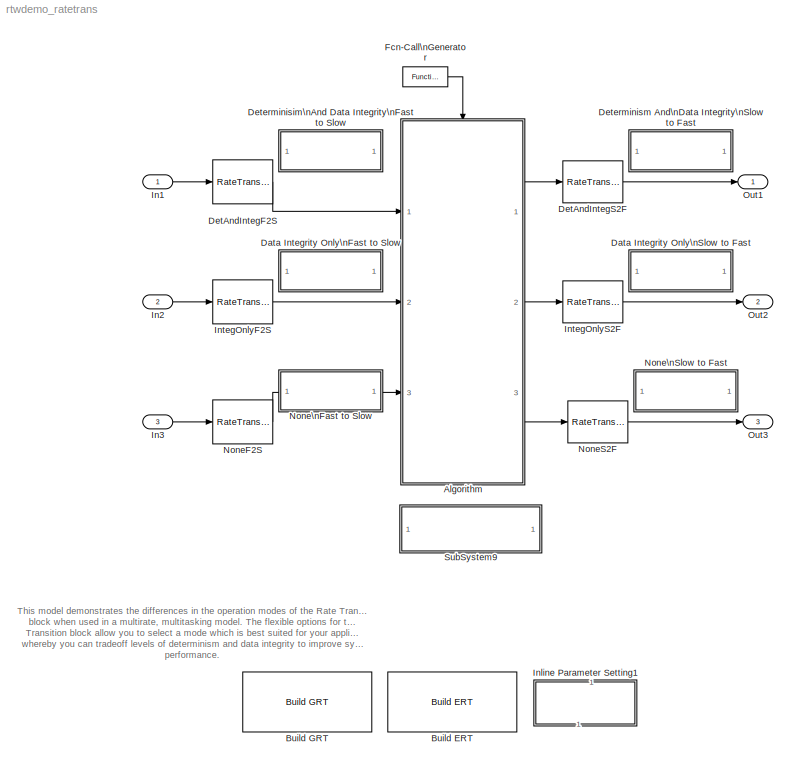
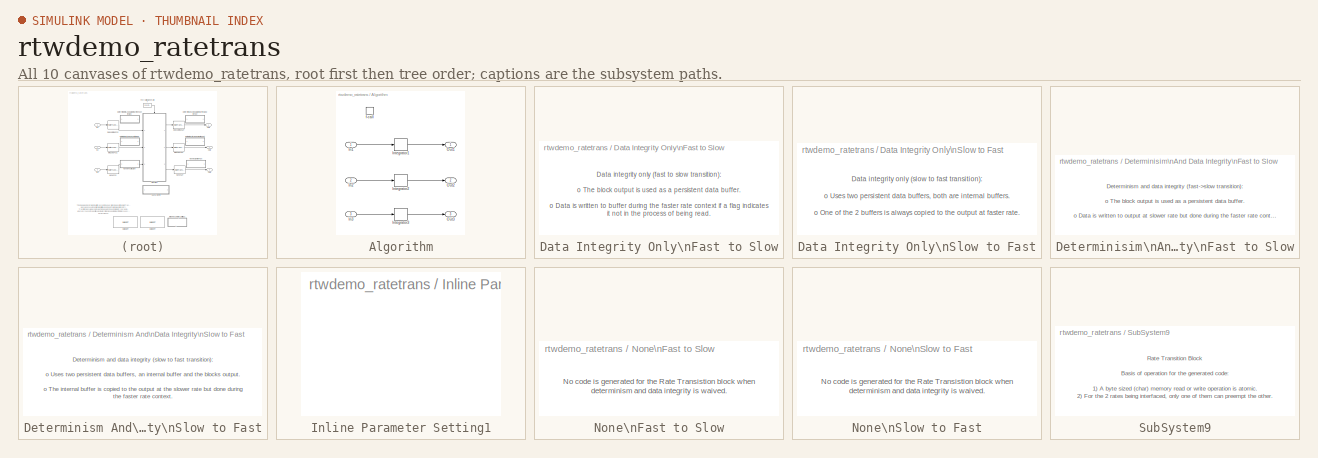
[diagram: thumbnail index - all 10 canvases of the model, root first then tree order]
MODEL rtwdemo_ratetrans
KIND model
CONFIG PreLoadFcn = width = 160;
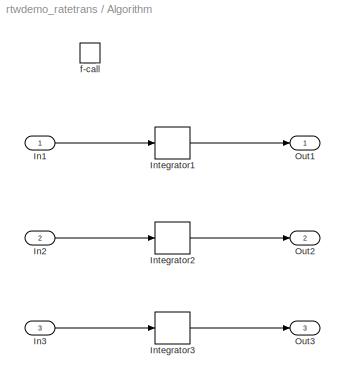
BLOCK [SubSystem] Algorithm
  MinAlgLoopOccurrences = off
  Ports = [3, 3, 0, 1]
  PropExecContextAcrossSSBoundary = on
  RTWFcnName = Algorithm
  RTWFcnNameOpts = User specified
  RTWFileName = Algorithm
  RTWFileNameOpts = User specified
  RTWSystemCode = Auto
  TreatAsAtomicUnit = on
BLOCK [Inport] Algorithm/In1
  IconDisplay = Port number
  LatchInput = off
  Port = 1
BLOCK [Inport] Algorithm/In2
  IconDisplay = Port number
  LatchInput = off
  Port = 2
BLOCK [Inport] Algorithm/In3
  IconDisplay = Port number
  LatchInput = off
  Port = 3
BLOCK [DiscreteIntegrator] Algorithm/Integrator1
  ExternalReset = none
  ICPrevOutput = DiscIntNeverNeededParam
  ICPrevScaledInput = DiscIntNeverNeededParam
  InitialConditionSource = internal
  IntegratorMethod = Integration: Forward Euler
  Ports = [1, 1]
  SampleTime = -1
  SaturateOnIntegerOverflow = on
BLOCK [DiscreteIntegrator] Algorithm/Integrator2
  ExternalReset = none
  ICPrevOutput = DiscIntNeverNeededParam
  ICPrevScaledInput = DiscIntNeverNeededParam
  InitialConditionSource = internal
  IntegratorMethod = Integration: Forward Euler
  Ports = [1, 1]
  SampleTime = -1
  SaturateOnIntegerOverflow = on
BLOCK [DiscreteIntegrator] Algorithm/Integrator3
  ExternalReset = none
  ICPrevOutput = DiscIntNeverNeededParam
  ICPrevScaledInput = DiscIntNeverNeededParam
  InitialConditionSource = internal
  IntegratorMethod = Integration: Forward Euler
  Ports = [1, 1]
  SampleTime = -1
  SaturateOnIntegerOverflow = on
BLOCK [Outport] Algorithm/Out1
  BusOutputAsStruct = off
  IconDisplay = Port number
  InitialOutput = 0
BLOCK [Outport] Algorithm/Out2
  BusOutputAsStruct = off
  IconDisplay = Port number
  InitialOutput = 0
  Port = 2
BLOCK [Outport] Algorithm/Out3
  BusOutputAsStruct = off
  IconDisplay = Port number
  InitialOutput = 0
  Port = 3
BLOCK [TriggerPort] Algorithm/f-call
  Ports = []
  TriggerType = function-call
BLOCK [Reference] Build ERT  REF=rtwdemowidgets/Build ERT
  Ports = []
  ShowPortLabels = on
  SourceBlock = rtwdemowidgets/Build ERT
  attrib_overrides = {}
BLOCK [Reference] Build GRT  REF=rtwdemowidgets/Build GRT
  Ports = []
  ShowPortLabels = on
  SourceBlock = rtwdemowidgets/Build GRT
  attrib_overrides = {}
BLOCK [SubSystem] Data Integrity Only\nFast to Slow
  MaskDisplay = disp(['Generated Code\\nDescription..','.'])
  MaskIconFrame = on
  MaskIconOpaque = on
  MaskIconRotate = none
  MaskIconUnits = autoscale
  MinAlgLoopOccurrences = off
  Ports = []
  PropExecContextAcrossSSBoundary = on
  RTWSystemCode = Auto
  TreatAsAtomicUnit = off
BLOCK [SubSystem] Data Integrity Only\nSlow to Fast
  MaskDisplay = disp(['Generated Code\\nDescription..','.'])
  MaskIconFrame = on
  MaskIconOpaque = on
  MaskIconRotate = none
  MaskIconUnits = autoscale
  MinAlgLoopOccurrences = off
  Ports = []
  PropExecContextAcrossSSBoundary = on
  RTWSystemCode = Auto
  TreatAsAtomicUnit = off
BLOCK [RateTransition] DetAndIntegF2S
  OutPortSampleTime = 1/1000
BLOCK [RateTransition] DetAndIntegS2F
  OutPortSampleTime = 1/2000
BLOCK [SubSystem] Determinisim\nAnd Data Integrity\nFast to Slow
  MaskDisplay = disp(['Generated Code\\nDescription..','.'])
  MaskIconFrame = on
  MaskIconOpaque = on
  MaskIconRotate = none
  MaskIconUnits = autoscale
  MinAlgLoopOccurrences = off
  Ports = []
  PropExecContextAcrossSSBoundary = on
  RTWSystemCode = Auto
  TreatAsAtomicUnit = off
BLOCK [SubSystem] Determinism And\nData Integrity\nSlow to Fast
  MaskDisplay = disp(['Generated Code\\nDescription..','.'])
  MaskIconFrame = on
  MaskIconOpaque = on
  MaskIconRotate = none
  MaskIconUnits = autoscale
  MinAlgLoopOccurrences = off
  Ports = []
  PropExecContextAcrossSSBoundary = on
  RTWSystemCode = Auto
  TreatAsAtomicUnit = off
BLOCK [Reference] Fcn-Call\nGenerator  REF=simulink/Ports &\nSubsystems/Function-Call\nGenerator
  Ports = [0, 1]
  SourceBlock = simulink/Ports &\nSubsystems/Function-Call\nGenerator
  SourceType = Function-Call Generator
  numberOfIterations = 1
  sample_time = 1/1000
BLOCK [Inport] In1
  DataType = double
  IconDisplay = Port number
  LatchInput = off
  Port = 1
  PortDimensions = 20
  SampleTime = 1/2000
BLOCK [Inport] In2
  DataType = double
  IconDisplay = Port number
  LatchInput = off
  Port = 2
  PortDimensions = 20
  SampleTime = 1/2000
BLOCK [Inport] In3
  DataType = double
  IconDisplay = Port number
  LatchInput = off
  Port = 3
  PortDimensions = 20
  SampleTime = 1/2000
BLOCK [SubSystem] Inline Parameter Setting1
  MaskDisplay = disp(sprintf('Display Sample\\nTime Colors\\n(double-click)'))
  MaskIconFrame = on
  MaskIconOpaque = on
  MaskIconRotate = none
  MaskIconUnits = autoscale
  MinAlgLoopOccurrences = off
  OpenFcn = m=get_param(bdroot,'name');\nsim(m);
  Ports = []
  PropExecContextAcrossSSBoundary = on
  RTWSystemCode = Auto
  TreatAsAtomicUnit = off
BLOCK [RateTransition] IntegOnlyF2S
  Deterministic = off
  OutPortSampleTime = 1/1000
BLOCK [RateTransition] IntegOnlyS2F
  Deterministic = off
  OutPortSampleTime = 1/2000
BLOCK [RateTransition] NoneF2S
  Deterministic = off
  Integrity = off
  OutPortSampleTime = 1/1000
BLOCK [RateTransition] NoneS2F
  Deterministic = off
  Integrity = off
  OutPortSampleTime = 1/2000
BLOCK [SubSystem] None\nFast to Slow
  MaskDisplay = disp(['Generated Code\\nDescription..','.'])
  MaskIconFrame = on
  MaskIconOpaque = on
  MaskIconRotate = none
  MaskIconUnits = autoscale
  MinAlgLoopOccurrences = off
  Ports = []
  PropExecContextAcrossSSBoundary = on
  RTWSystemCode = Auto
  TreatAsAtomicUnit = off
BLOCK [SubSystem] None\nSlow to Fast
  MaskDisplay = disp(['Generated Code\\nDescription..','.'])
  MaskIconFrame = on
  MaskIconOpaque = on
  MaskIconRotate = none
  MaskIconUnits = autoscale
  MinAlgLoopOccurrences = off
  Ports = []
  PropExecContextAcrossSSBoundary = on
  RTWSystemCode = Auto
  TreatAsAtomicUnit = off
BLOCK [Outport] Out1
  BusOutputAsStruct = off
  IconDisplay = Port number
BLOCK [Outport] Out2
  BusOutputAsStruct = off
  IconDisplay = Port number
  Port = 2
BLOCK [Outport] Out3
  BusOutputAsStruct = off
  IconDisplay = Port number
  Port = 3
BLOCK [SubSystem] SubSystem9
  MaskDisplay = text(.05,.5,['Rate Transition Block\\nOverview..','.'])
  MaskIconFrame = on
  MaskIconOpaque = on
  MaskIconRotate = none
  MaskIconUnits = normalized
  MinAlgLoopOccurrences = off
  Ports = []
  PropExecContextAcrossSSBoundary = on
  RTWSystemCode = Auto
  TreatAsAtomicUnit = off
ANNOTATION (root): This model demonstrates the differences in the operation modes of the Rate Transition\nblock when used in a multirate, multitasking model. The flexible options for the Rate\nTransition block allow you to select a mode which is best suited for your application,\nwhereby you can tradeoff levels of determinism and data integrity to improve system\nperformance.
ANNOTATION Data Integrity Only\nFast to Slow: Data integrity only (fast to slow transition):\n\no The block output is used as a persistent data buffer.\n\no Data is written to buffer during the faster rate context if a flag indicates\nit not in the process of being read.\n\no The flag is set and data is copied from the buffer to output at the slow\nrate, the flag is then cleared. This is an additional copy as compared to the\n deterministic c...<+156ch>
ANNOTATION Data Integrity Only\nSlow to Fast: Data integrity only (slow to fast transition):\n\no Uses two persistent data buffers, both are internal buffers.\n\no One of the 2 buffers is always copied to the output at faster rate.\n\no One of the 2 buffers is written at the slower rate and during the slower rate\ncontext, then the active buffer is switched.\n\no The data as seen by the faster rate can be more recent than for the\ndeterminist...<+300ch>
ANNOTATION Determinisim\nAnd Data Integrity\nFast to Slow: Determinism and data integrity (fast->slow transition):\n\no The block output is used as a persistent data buffer.\n \no Data is written to output at slower rate but done during the faster rate context\n\no Data as seen by the slower rate is always the value when both the faster and\nslower rate last executed. Any subsequent steps by the faster rate (and\nassociated data updates) while the slower ...<+51ch>
ANNOTATION Determinism And\nData Integrity\nSlow to Fast: Determinism and data integrity (slow to fast transition):\n\no Uses two persistent data buffers, an internal buffer and the blocks output.\n\no The internal buffer is copied to the output at the slower rate but done during\n the faster rate context.\n\no The internal buffer is written at the slower rate and during the slower rate context.\n\no The data that Fast rate sees is always delayed, i.e. d...<+53ch>
ANNOTATION None\nFast to Slow: No code is generated for the Rate Transistion block when\ndeterminism and data integrity is waived.
ANNOTATION None\nSlow to Fast: No code is generated for the Rate Transistion block when\ndeterminism and data integrity is waived.
ANNOTATION SubSystem9: Rate Transition Block\n\nBasis of operation for the generated code:\n\n1) A byte sized (char) memory read or write operation is atomic.\n2) For the 2 rates being interfaced, only one of them can preempt the other.\n3) The priority assigned to the rates determine which rate can preempt the other.\n\nModes of operation:\n\n1) Ensure data integrity and determinism (DetAndInteg): Data is transferred s...<+1422ch>
LINE Algorithm/In1:1 -> Algorithm/Integrator1:1
LINE Algorithm/In2:1 -> Algorithm/Integrator2:1
LINE Algorithm/In3:1 -> Algorithm/Integrator3:1
LINE Algorithm/Integrator1:1 -> Algorithm/Out1:1
LINE Algorithm/Integrator2:1 -> Algorithm/Out2:1
LINE Algorithm/Integrator3:1 -> Algorithm/Out3:1
LINE Algorithm:1 -> DetAndIntegS2F:1
LINE Algorithm:2 -> IntegOnlyS2F:1
LINE Algorithm:3 -> NoneS2F:1
LINE DetAndIntegF2S:1 -> Algorithm:1
LINE DetAndIntegS2F:1 -> Out1:1
LINE Fcn-Call\nGenerator:1 -> Algorithm:trigger
LINE In1:1 -> DetAndIntegF2S:1
LINE In2:1 -> IntegOnlyF2S:1
LINE In3:1 -> NoneF2S:1
LINE IntegOnlyF2S:1 -> Algorithm:2
LINE IntegOnlyS2F:1 -> Out2:1
LINE NoneF2S:1 -> Algorithm:3
LINE NoneS2F:1 -> Out3:1
